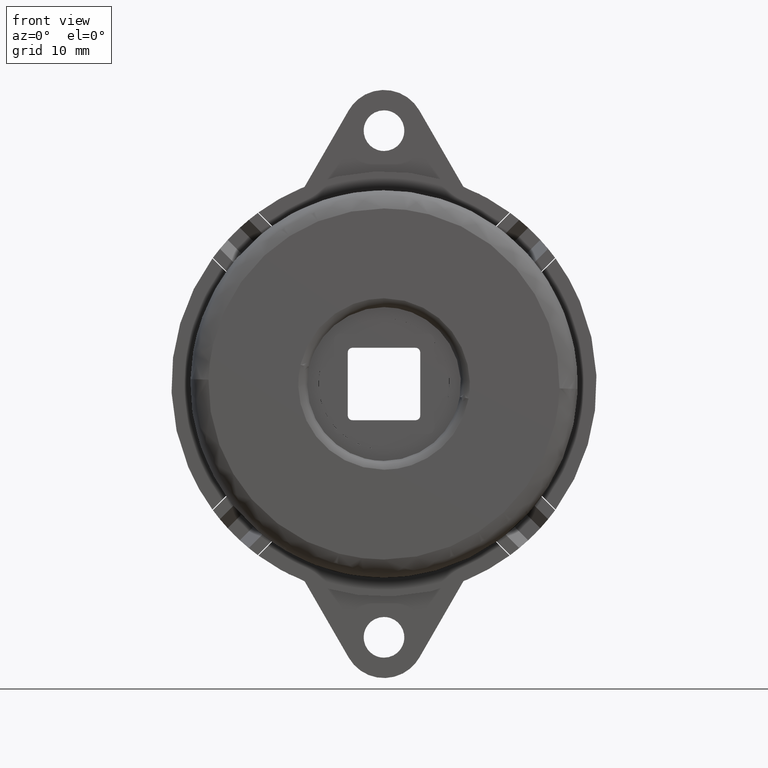
[diagram: clean part render]
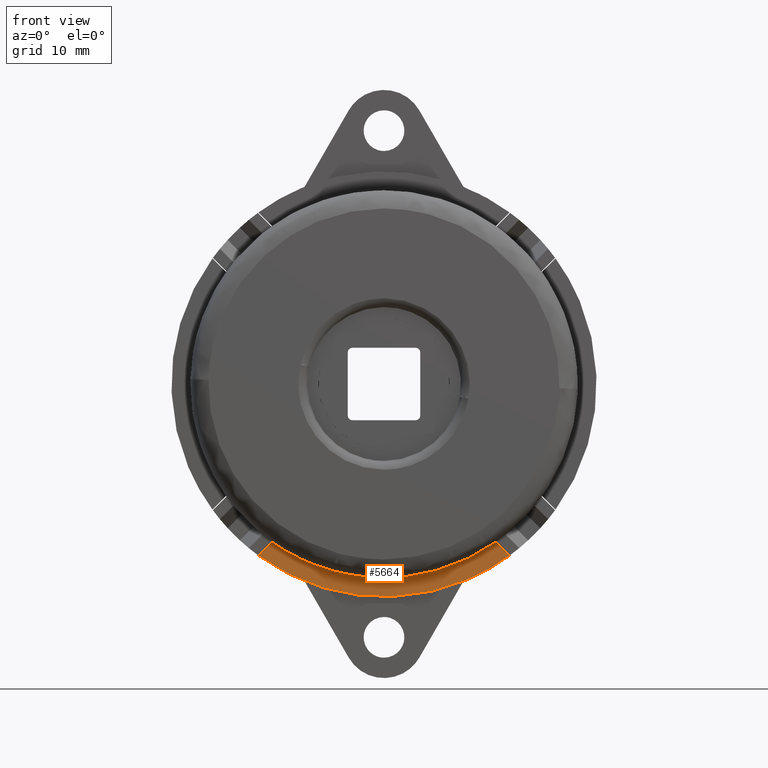
[diagram: same view with one face highlighted and labeled with its STEP entity id]
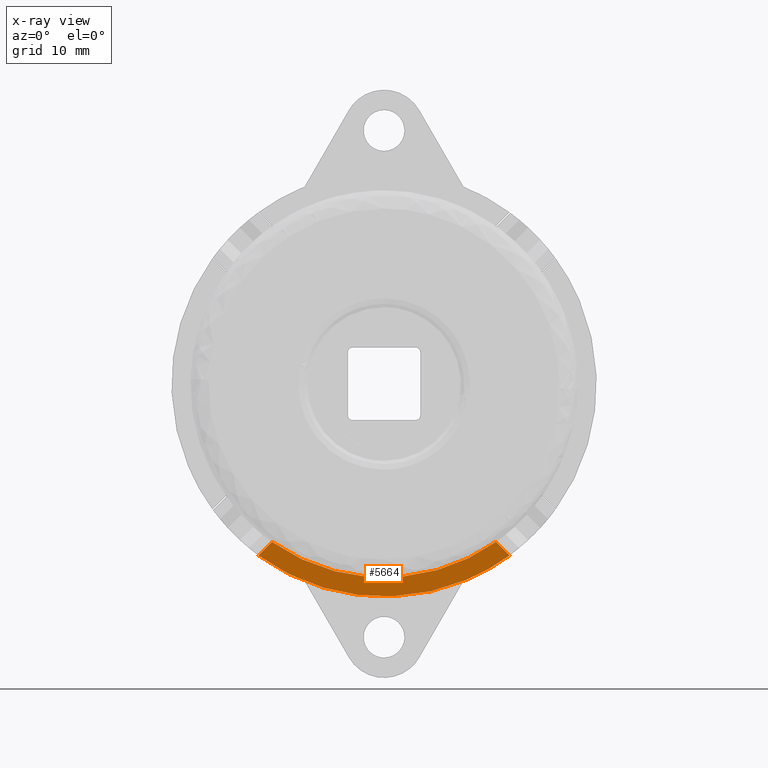
[diagram: x-ray of the same camera — body ghosted, the highlighted face saturated]
A machine part, front view. The second image highlights one B-rep face of the part: STEP entity #5664.
The next image is the same camera in x-ray: the body ghosted, the highlighted face saturated — about 0% of this face is hidden behind the body in this view.
In plain terms, the highlighted face is a freeform B-spline surface patch.
Its self-contained STEP definition (entity closure, byte-faithful):
#1864=CARTESIAN_POINT('',(-12.370849459353121,-2.600000000000045,-17.462018315590651));
#1865=VERTEX_POINT('',#1864);
#1866=CARTESIAN_POINT('',(12.370849459353121,-2.600000000000045,-17.462018315590651));
#1867=VERTEX_POINT('',#1866);
#1868=CARTESIAN_POINT('',(-12.370849459353121,-2.600000000000000,-17.462018315590630));
#1869=CARTESIAN_POINT('',(-6.938894E-015,-2.600000000000000,-26.226063432261952));
#1870=CARTESIAN_POINT('',(12.370849459353110,-2.600000000000000,-17.462018315590640));
#1878=(BOUNDED_CURVE()B_SPLINE_CURVE(2,(#1868,#1869,#1870),.UNSPECIFIED.,.F.,.U.)CURVE()GEOMETRIC_REPRESENTATION_ITEM()QUASI_UNIFORM_CURVE()RATIONAL_B_SPLINE_CURVE((1.0,0.815982164279936,1.0))REPRESENTATION_ITEM(''));
#1879=EDGE_CURVE('',#1865,#1867,#1878,.T.);
#4487=CARTESIAN_POINT('',(13.875286435490240,-2.600000000000045,-18.966455291727549));
#4488=VERTEX_POINT('',#4487);
#4489=CARTESIAN_POINT('',(13.875286435490240,-2.600000000000045,-18.966455291727549));
#4490=CARTESIAN_POINT('',(12.370849459353121,-2.600000000000045,-17.462018315590651));
#4491=QUASI_UNIFORM_CURVE('',1,(#4489,#4490),.UNSPECIFIED.,.F.,.U.);
#4492=EDGE_CURVE('',#4488,#1867,#4491,.T.);
#4509=CARTESIAN_POINT('',(-13.875286435490240,-2.600000000000045,-18.966455291727549));
#4510=VERTEX_POINT('',#4509);
#4516=CARTESIAN_POINT('',(-13.875286435490240,-2.600000000000045,-18.966455291727549));
#4517=CARTESIAN_POINT('',(-12.370849459353121,-2.600000000000045,-17.462018315590651));
#4518=QUASI_UNIFORM_CURVE('',1,(#4516,#4517),.UNSPECIFIED.,.F.,.U.);
#4519=EDGE_CURVE('',#4510,#1865,#4518,.T.);
#5637=CARTESIAN_POINT('',(-13.875286435490249,-2.600000000000000,-18.966455291727559));
#5638=CARTESIAN_POINT('',(-6.938894E-015,-2.600000000000001,-29.117196202754357));
#5639=CARTESIAN_POINT('',(13.875286435490240,-2.600000000000000,-18.966455291727570));
#5647=(BOUNDED_CURVE()B_SPLINE_CURVE(2,(#5637,#5638,#5639),.UNSPECIFIED.,.F.,.U.)CURVE()GEOMETRIC_REPRESENTATION_ITEM()QUASI_UNIFORM_CURVE()RATIONAL_B_SPLINE_CURVE((1.0,0.807083203903300,1.0))REPRESENTATION_ITEM(''));
#5648=EDGE_CURVE('',#4510,#4488,#5647,.T.);
#5653=CARTESIAN_POINT('',(-15.261427136962659,-2.600000000000000,-17.160421822320210));
#5654=CARTESIAN_POINT('',(-15.261427136962659,-2.600000000000000,-23.801597303026881));
#5655=CARTESIAN_POINT('',(15.261426144524840,-2.600000000000000,-17.160421822320210));
#5656=CARTESIAN_POINT('',(15.261426144524840,-2.600000000000000,-23.801597303026881));
#5657=B_SPLINE_SURFACE_WITH_KNOTS('',1,1,((#5653,#5655),(#5654,#5656)),.UNSPECIFIED.,.F.,.F.,.U.,(2,2),(2,2),(0.0,6.641175480706671),(0.0,30.522853281487500),.UNSPECIFIED.);
#5658=ORIENTED_EDGE('',*,*,#5648,.T.);
#5659=ORIENTED_EDGE('',*,*,#4492,.T.);
#5660=ORIENTED_EDGE('',*,*,#1879,.F.);
#5661=ORIENTED_EDGE('',*,*,#4519,.F.);
#5662=EDGE_LOOP('',(#5658,#5659,#5660,#5661));
#5663=FACE_OUTER_BOUND('',#5662,.T.);
#5664=ADVANCED_FACE('',(#5663),#5657,.T.);